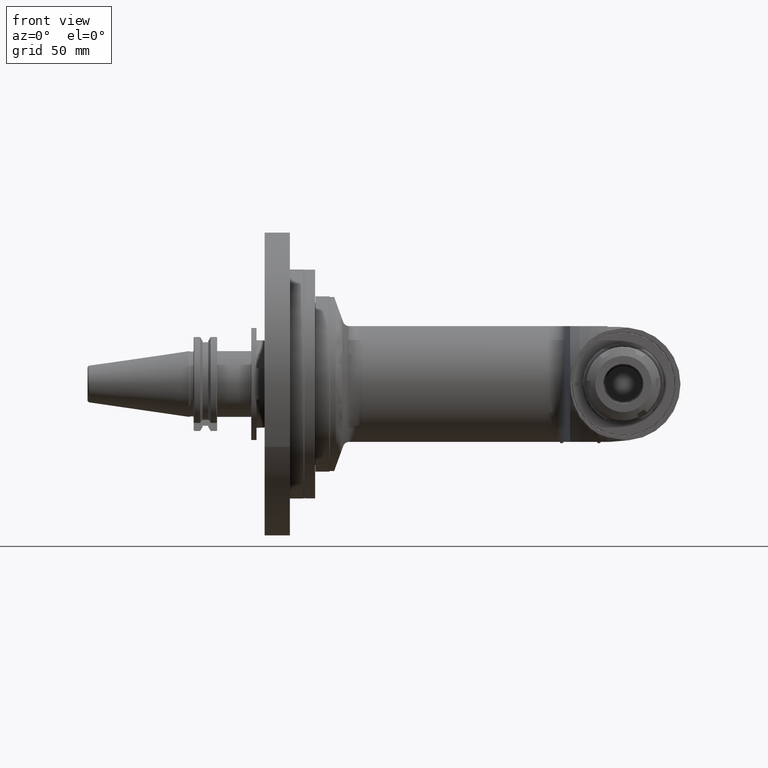
[diagram: clean part render]
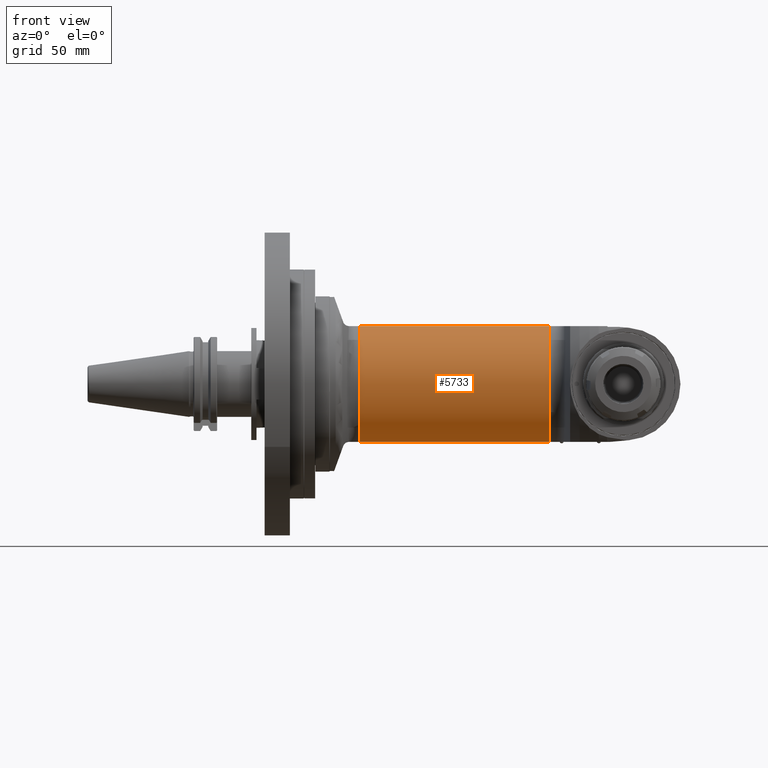
[diagram: same view with one face highlighted and labeled with its STEP entity id]
A machine part, front view. The second image highlights one B-rep face of the part: STEP entity #5733.
In plain terms, the highlighted cylindrical surface (partial cylindrical patch) has radius 42.5 mm, axis along (-1, 0, 0).
Its self-contained STEP definition (entity closure, byte-faithful):
#67=CYLINDRICAL_SURFACE('',#6192,42.5);
#497=FACE_OUTER_BOUND('',#866,.T.);
#866=EDGE_LOOP('',(#3887,#3888,#3889,#3890));
#1338=CIRCLE('',#6191,42.5);
#1339=CIRCLE('',#6193,42.5);
#1679=LINE('',#8809,#2023);
#1686=LINE('',#9044,#2030);
#2023=VECTOR('',#6939,127.7897678687);
#2030=VECTOR('',#6978,127.7897678687);
#2377=VERTEX_POINT('',#8795);
#2378=VERTEX_POINT('',#8808);
#2410=VERTEX_POINT('',#9028);
#2411=VERTEX_POINT('',#9043);
#2959=EDGE_CURVE('',#2378,#2377,#1679,.T.);
#2997=EDGE_CURVE('',#2410,#2377,#1338,.T.);
#2998=EDGE_CURVE('',#2410,#2411,#1686,.T.);
#2999=EDGE_CURVE('',#2378,#2411,#1339,.T.);
#3887=ORIENTED_EDGE('',*,*,#2998,.T.);
#3888=ORIENTED_EDGE('',*,*,#2999,.F.);
#3889=ORIENTED_EDGE('',*,*,#2959,.T.);
#3890=ORIENTED_EDGE('',*,*,#2997,.F.);
#5733=ADVANCED_FACE('',(#497),#67,.T.);
#6191=AXIS2_PLACEMENT_3D('',#9041,#6974,#6975);
#6192=AXIS2_PLACEMENT_3D('',#9042,#6976,#6977);
#6193=AXIS2_PLACEMENT_3D('',#9045,#6979,#6980);
#6939=DIRECTION('',(-1.,0.,0.));
#6974=DIRECTION('center_axis',(-1.,0.,0.));
#6975=DIRECTION('ref_axis',(0.,-0.397396370683616,-0.917647058823538));
#6976=DIRECTION('center_axis',(-1.,0.,0.));
#6977=DIRECTION('ref_axis',(0.,-1.,3.21624529935327E-16));
#6978=DIRECTION('',(1.,0.,0.));
#6979=DIRECTION('center_axis',(1.,0.,0.));
#6980=DIRECTION('ref_axis',(0.,-1.,0.));
#8795=CARTESIAN_POINT('',(-177.709361554,-16.88934575405,39.));
#8808=CARTESIAN_POINT('',(-49.91959368527,-16.88934575405,39.));
#8809=CARTESIAN_POINT('',(-49.91959368527,-16.88934575405,39.));
#9028=CARTESIAN_POINT('',(-177.709361554,-16.88934575405,-39.));
#9041=CARTESIAN_POINT('Origin',(-177.709361554,0.,0.));
#9042=CARTESIAN_POINT('Origin',(-67.,0.,0.));
#9043=CARTESIAN_POINT('',(-49.91959368527,-16.88934575405,-39.));
#9044=CARTESIAN_POINT('',(-177.709361554,-16.88934575405,-39.));
#9045=CARTESIAN_POINT('Origin',(-49.91959368527,0.,0.));